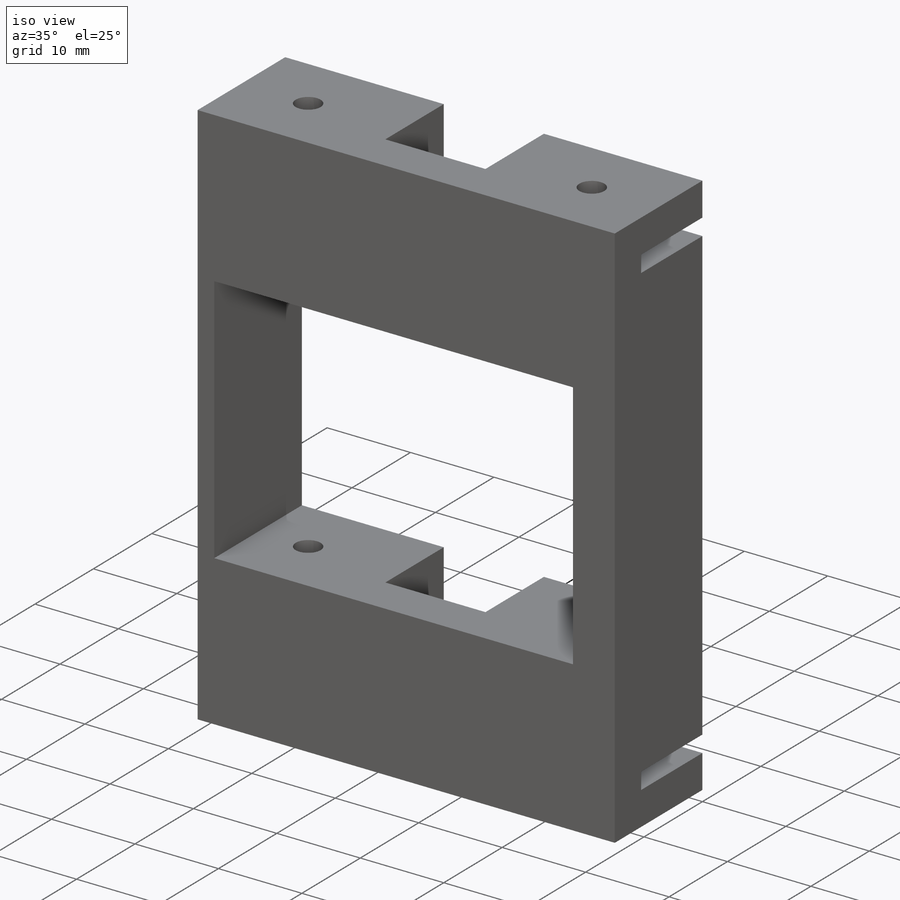
[diagram: iso view]
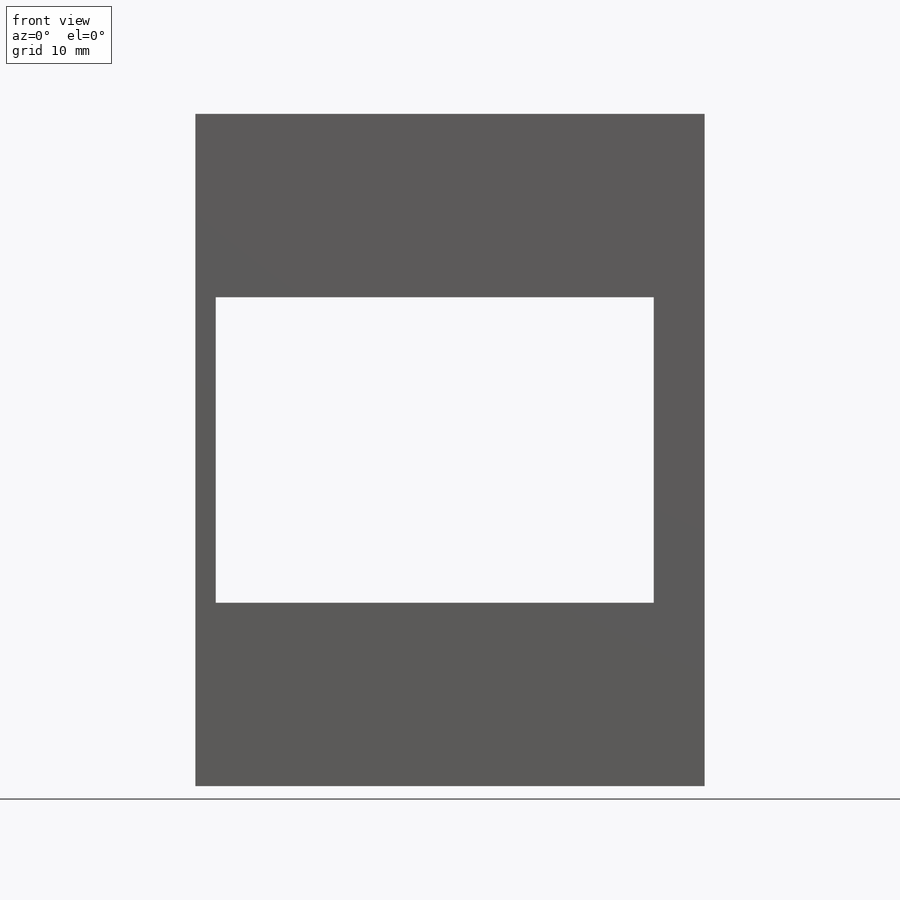
[diagram: front view]
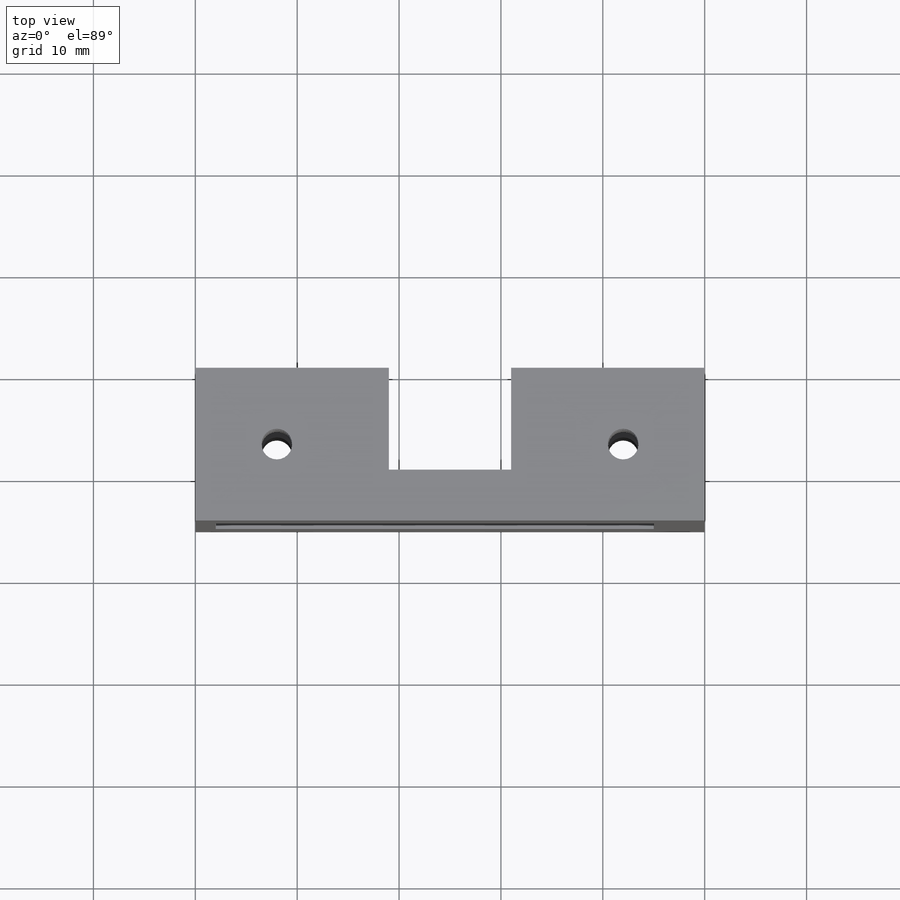
[diagram: top view]
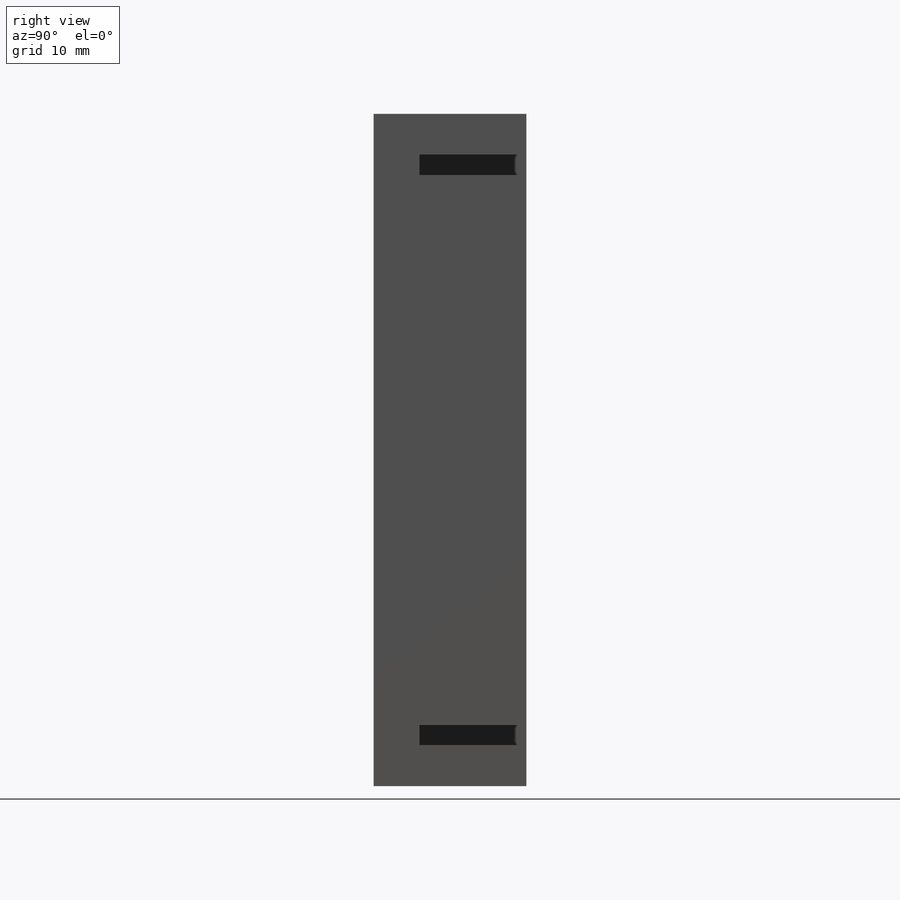
[diagram: right view]
SOLIDWORKS PART (.sldprt)
format: sldprt  version: not decoded by parser v0  size: 385,024 bytes
history: native  units: mm
features: sketch x4, plane x3, cut_extrude x3, material x1, extrude x1 (+13 scaffold rows collapsed)
feature tree (25):
  scaffold x13  (default folders/planes/origin — collapsed)
  material  "Material <sin especificar>"
  plane  "Alzado"
  plane  "Planta"
  plane  "Vista lateral"
  sketch  "Croquis1"  dims[D1=66.0mm D2=50.0mm D3=18.0mm D4=18.0mm D5=5.0mm D6=2.0mm]
  extrude  "Saliente-Extruir1"  Depth=15mm
  sketch  "Croquis2"  dims[c1.D1=3.0mm c1.D2=17.0mm c1.D3=6.0mm c1.D4=6.0mm c2.D3=10.0mm c2.D4=6.0mm c2.D5=7.5mm c3.D3=6.0mm c3.D4=12.0mm c4.D3=10.0mm c4.D6=6.0mm c4.D7=6.0mm]
  sketch  "Croquis3"  dims[D1=2.0mm D2=4.5mm D3=4.0mm]
  cut_extrude  "Cortar-Extruir5"  [1 undecoded]
  cut_extrude  "Cortar-Extruir2"  Depth=12mm
  sketch  "Croquis5"  dims[D1=4.0mm D2=2.0mm D3=4.5mm]
  cut_extrude  "Cortar-Extruir3"  Depth=12mm
decode coverage: 7 of 8 modeling features carry decoded parameters
note: 1 parameter value undecoded
note: suppression state not decoded; provenance and decode notes live in map.json
